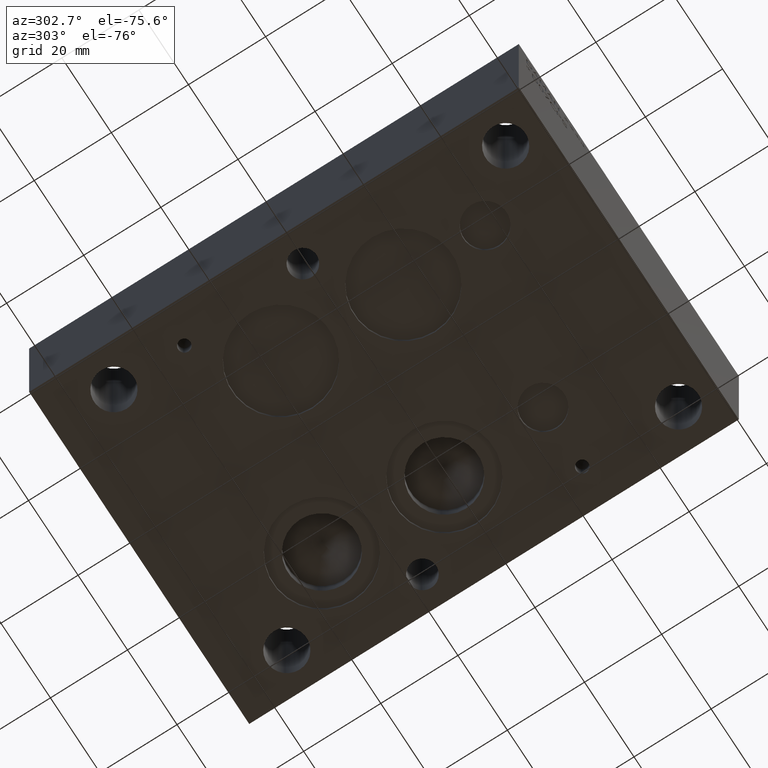
[diagram: clean part render]
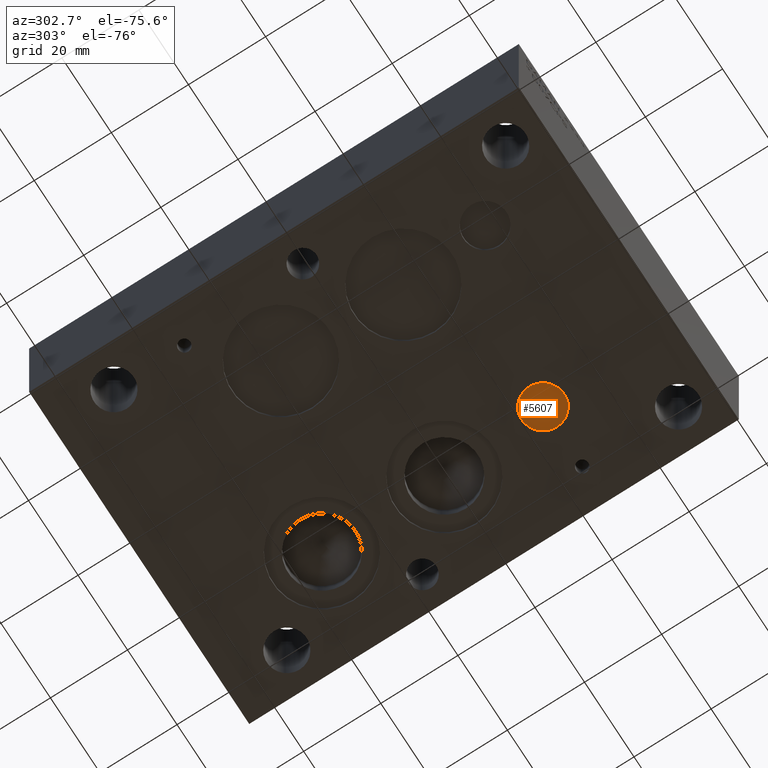
[diagram: same view with one face highlighted and labeled with its STEP entity id]
A machine part, auxiliary view. The second image highlights one B-rep face of the part: STEP entity #5607.
In plain terms, the highlighted planar face has unit normal (0, 0, 1).
Its self-contained STEP definition (entity closure, byte-faithful):
#41=CIRCLE('',#5862,0.219);
#42=CIRCLE('',#5863,0.219);
#469=FACE_OUTER_BOUND('',#783,.T.);
#783=EDGE_LOOP('',(#4984,#4985));
#2679=VERTEX_POINT('',#9684);
#2680=VERTEX_POINT('',#9685);
#3464=EDGE_CURVE('',#2679,#2680,#41,.T.);
#3465=EDGE_CURVE('',#2680,#2679,#42,.T.);
#4984=ORIENTED_EDGE('',*,*,#3464,.T.);
#4985=ORIENTED_EDGE('',*,*,#3465,.T.);
#5330=PLANE('',#5861);
#5607=ADVANCED_FACE('',(#469),#5330,.F.);
#5861=AXIS2_PLACEMENT_3D('',#9683,#6938,#6939);
#5862=AXIS2_PLACEMENT_3D('',#9686,#6940,#6941);
#5863=AXIS2_PLACEMENT_3D('',#9687,#6942,#6943);
#6938=DIRECTION('center_axis',(0.,0.,1.));
#6939=DIRECTION('ref_axis',(1.,0.,0.));
#6940=DIRECTION('center_axis',(0.,0.,-1.));
#6941=DIRECTION('ref_axis',(1.,0.,0.));
#6942=DIRECTION('center_axis',(0.,0.,-1.));
#6943=DIRECTION('ref_axis',(1.,0.,0.));
#9683=CARTESIAN_POINT('Origin',(2.6105,1.359,0.04));
#9684=CARTESIAN_POINT('',(2.72,1.359,0.04));
#9685=CARTESIAN_POINT('',(2.282,1.359,0.04));
#9686=CARTESIAN_POINT('Origin',(2.501,1.359,0.04));
#9687=CARTESIAN_POINT('Origin',(2.501,1.359,0.04));